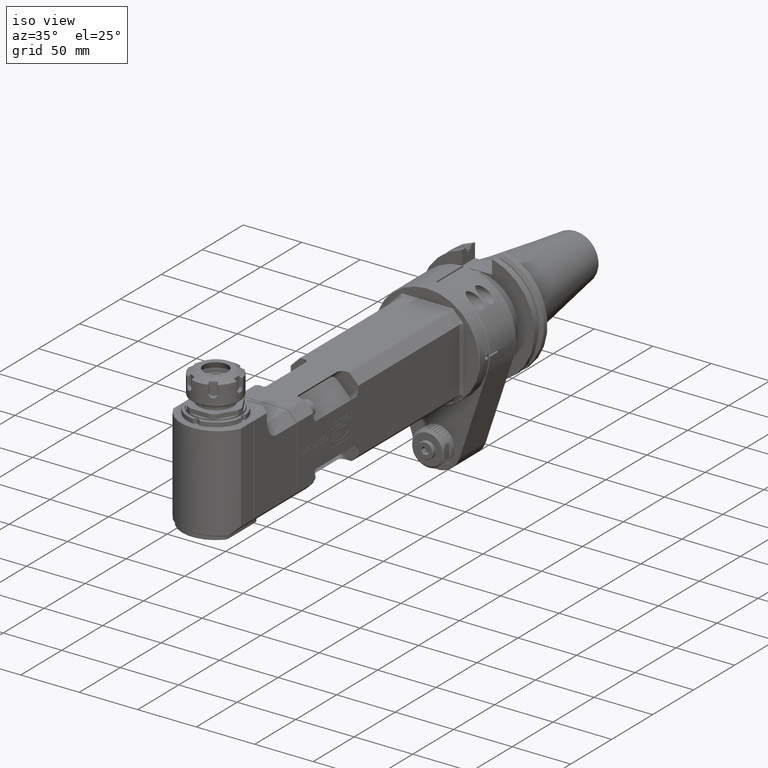
[diagram: clean part render]
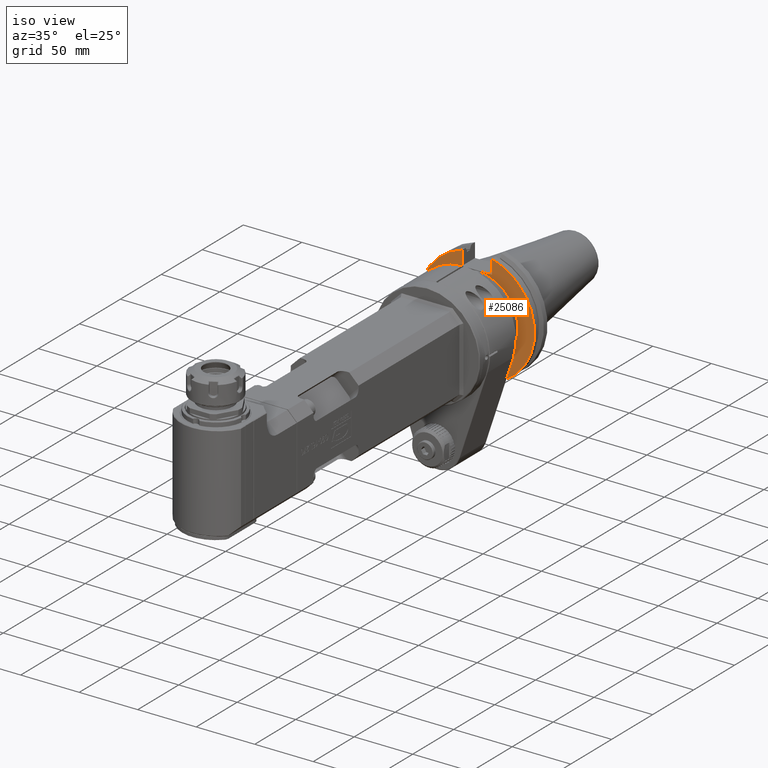
[diagram: same view with one face highlighted and labeled with its STEP entity id]
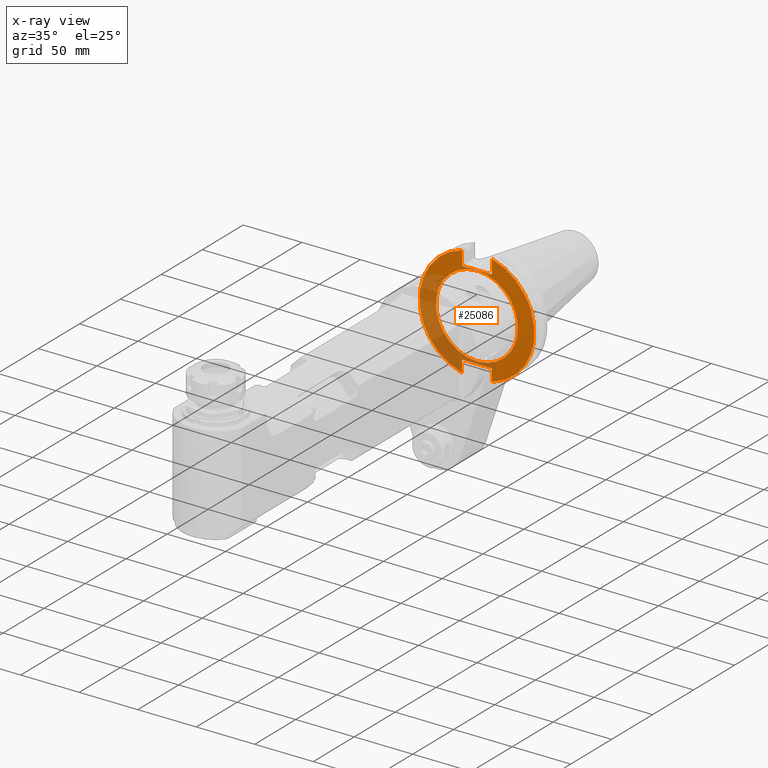
[diagram: x-ray of the same camera — body ghosted, the highlighted face saturated]
A machine part, iso view. The second image highlights one B-rep face of the part: STEP entity #25086.
The next image is the same camera in x-ray: the body ghosted, the highlighted face saturated — about 38% of this face is hidden behind the body in this view.
In plain terms, the highlighted planar face has unit normal (0, -1, 0).
Its self-contained STEP definition (entity closure, byte-faithful):
#370=FACE_BOUND('',#4653,.T.);
#1392=CIRCLE('',#27024,49.21);
#1393=CIRCLE('',#27025,49.21);
#1394=CIRCLE('',#27026,35.);
#3112=FACE_OUTER_BOUND('',#4652,.T.);
#4652=EDGE_LOOP('',(#18574,#18575,#18576,#18577,#18578,#18579,#18580,#18581));
#4653=EDGE_LOOP('',(#18582));
#6553=LINE('',#38915,#8644);
#6560=LINE('',#38936,#8651);
#6566=LINE('',#38958,#8657);
#6567=LINE('',#38963,#8658);
#6568=LINE('',#38965,#8659);
#6569=LINE('',#38967,#8660);
#8644=VECTOR('',#30943,10.30264834722);
#8651=VECTOR('',#30952,25.7);
#8657=VECTOR('',#30962,10.30264834722);
#8658=VECTOR('',#30967,12.20264834722);
#8659=VECTOR('',#30968,25.7);
#8660=VECTOR('',#30969,12.20264834722);
#10788=VERTEX_POINT('',#38912);
#10789=VERTEX_POINT('',#38914);
#10796=VERTEX_POINT('',#38934);
#10804=VERTEX_POINT('',#38956);
#10805=VERTEX_POINT('',#38960);
#10806=VERTEX_POINT('',#38962);
#10807=VERTEX_POINT('',#38964);
#10808=VERTEX_POINT('',#38966);
#10809=VERTEX_POINT('',#38969);
#13654=EDGE_CURVE('',#10788,#10789,#6553,.T.);
#13663=EDGE_CURVE('',#10788,#10796,#6560,.T.);
#13672=EDGE_CURVE('',#10796,#10804,#6566,.T.);
#13673=EDGE_CURVE('',#10805,#10804,#1392,.T.);
#13674=EDGE_CURVE('',#10806,#10805,#6567,.T.);
#13675=EDGE_CURVE('',#10807,#10806,#6568,.T.);
#13676=EDGE_CURVE('',#10807,#10808,#6569,.T.);
#13677=EDGE_CURVE('',#10789,#10808,#1393,.T.);
#13678=EDGE_CURVE('',#10809,#10809,#1394,.T.);
#18574=ORIENTED_EDGE('',*,*,#13672,.T.);
#18575=ORIENTED_EDGE('',*,*,#13673,.F.);
#18576=ORIENTED_EDGE('',*,*,#13674,.F.);
#18577=ORIENTED_EDGE('',*,*,#13675,.F.);
#18578=ORIENTED_EDGE('',*,*,#13676,.T.);
#18579=ORIENTED_EDGE('',*,*,#13677,.F.);
#18580=ORIENTED_EDGE('',*,*,#13654,.F.);
#18581=ORIENTED_EDGE('',*,*,#13663,.T.);
#18582=ORIENTED_EDGE('',*,*,#13678,.F.);
#24178=PLANE('',#27023);
#25086=ADVANCED_FACE('',(#3112,#370),#24178,.T.);
#27023=AXIS2_PLACEMENT_3D('',#38959,#30963,#30964);
#27024=AXIS2_PLACEMENT_3D('',#38961,#30965,#30966);
#27025=AXIS2_PLACEMENT_3D('',#38968,#30970,#30971);
#27026=AXIS2_PLACEMENT_3D('',#38970,#30972,#30973);
#30943=DIRECTION('',(-3.069031444701E-14,0.,-1.));
#30952=DIRECTION('',(1.,0.,0.));
#30962=DIRECTION('',(3.034547945323E-14,0.,-1.));
#30963=DIRECTION('center_axis',(0.,-1.,0.));
#30964=DIRECTION('ref_axis',(0.,0.,1.));
#30965=DIRECTION('center_axis',(0.,1.,0.));
#30966=DIRECTION('ref_axis',(0.261125787441599,0.,0.965304782508097));
#30967=DIRECTION('',(2.605728405875E-14,0.,1.));
#30968=DIRECTION('',(1.,0.,0.));
#30969=DIRECTION('',(-2.605728405875E-14,0.,1.));
#30970=DIRECTION('center_axis',(0.,1.,0.));
#30971=DIRECTION('ref_axis',(-0.261125787441599,0.,-0.965304782508097));
#30972=DIRECTION('center_axis',(0.,-1.,0.));
#30973=DIRECTION('ref_axis',(0.,0.,1.));
#38912=CARTESIAN_POINT('',(-12.85,48.9,-37.2));
#38914=CARTESIAN_POINT('',(-12.85,48.9000000000001,-47.50264834722));
#38915=CARTESIAN_POINT('',(-12.85,48.9,-37.2));
#38934=CARTESIAN_POINT('',(12.85,48.9,-37.2));
#38936=CARTESIAN_POINT('',(-12.85,48.9,-37.2));
#38956=CARTESIAN_POINT('',(12.85,48.9000000000001,-47.50264834722));
#38958=CARTESIAN_POINT('',(12.85,48.9,-37.2));
#38959=CARTESIAN_POINT('Origin',(0.,48.9,2.55605010058E-15));
#38960=CARTESIAN_POINT('',(12.85,48.9000000000001,47.50264834722));
#38961=CARTESIAN_POINT('Origin',(0.,48.9000000000003,-1.224645799147E-14));
#38962=CARTESIAN_POINT('',(12.85,48.9,35.3));
#38963=CARTESIAN_POINT('',(12.85,48.9,35.3));
#38964=CARTESIAN_POINT('',(-12.85,48.9,35.3));
#38965=CARTESIAN_POINT('',(-12.85,48.9,35.3));
#38966=CARTESIAN_POINT('',(-12.85,48.9000000000003,47.50264834722));
#38967=CARTESIAN_POINT('',(-12.85,48.9,35.3));
#38968=CARTESIAN_POINT('Origin',(0.,48.9000000000003,-1.224645799147E-14));
#38969=CARTESIAN_POINT('',(4.28626379701574E-15,48.9,-35.));
#38970=CARTESIAN_POINT('Origin',(0.,48.9,-9.73494205299982E-17));